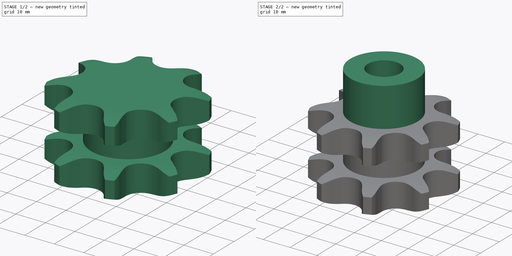
[diagram: build sequence overview — one tinted view per stage of 2, left to right]
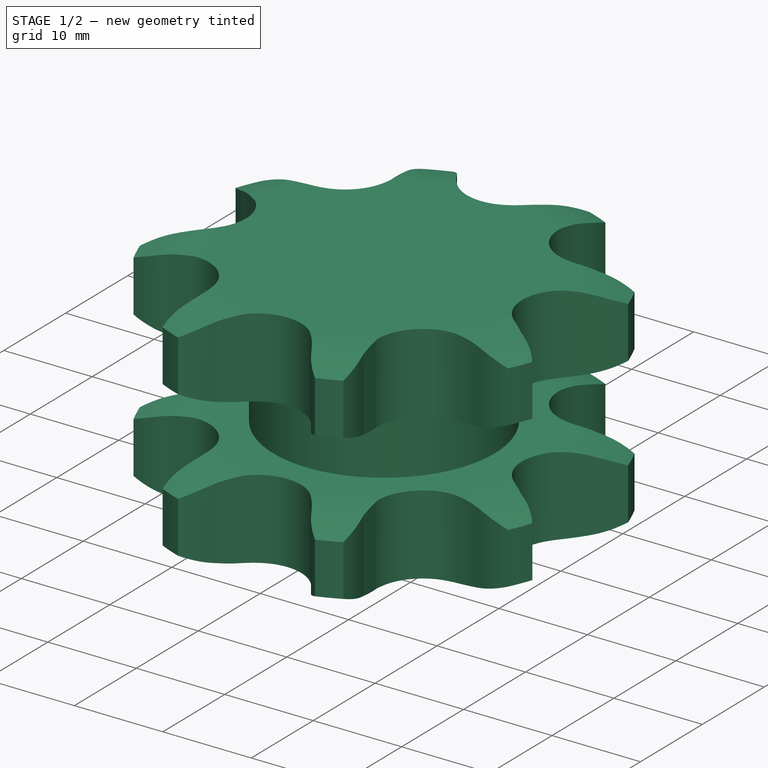
[diagram: stage 1 of 2 — iso view after this stage's code; geometry added in this stage tinted green]
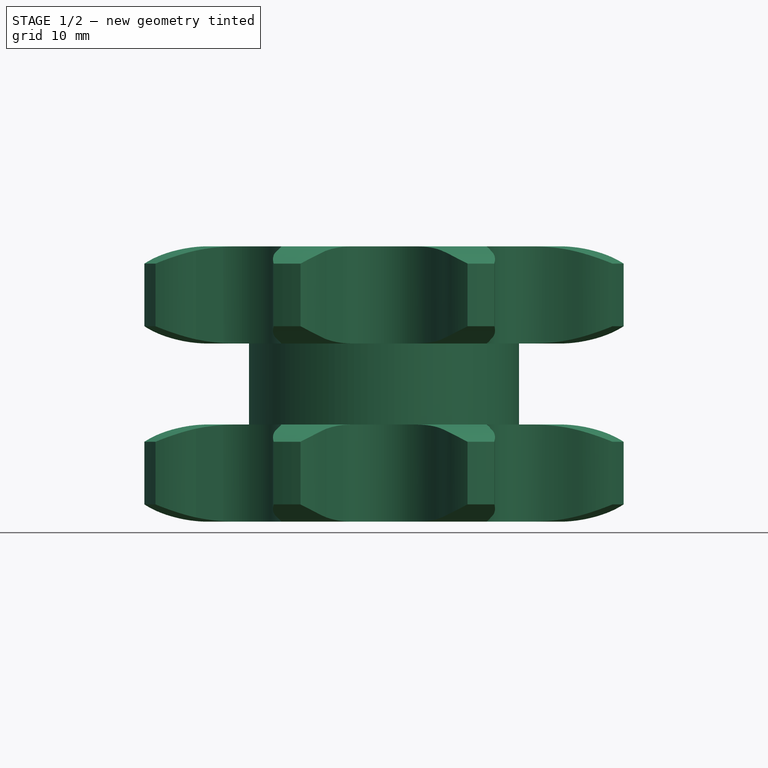
[diagram: stage 1 of 2 — front view after this stage's code; geometry added in this stage tinted green]
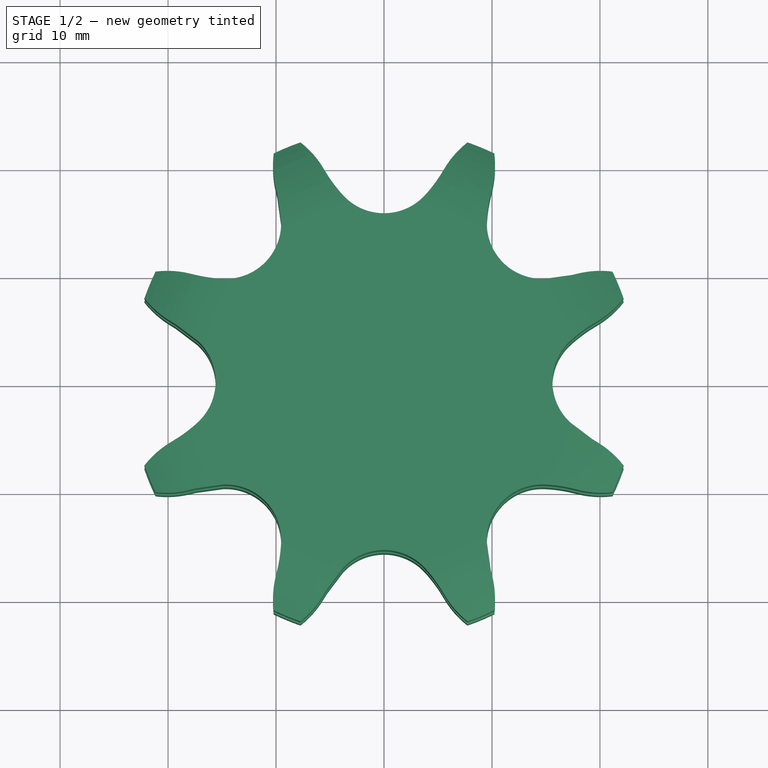
[diagram: stage 1 of 2 — top view after this stage's code; geometry added in this stage tinted green]
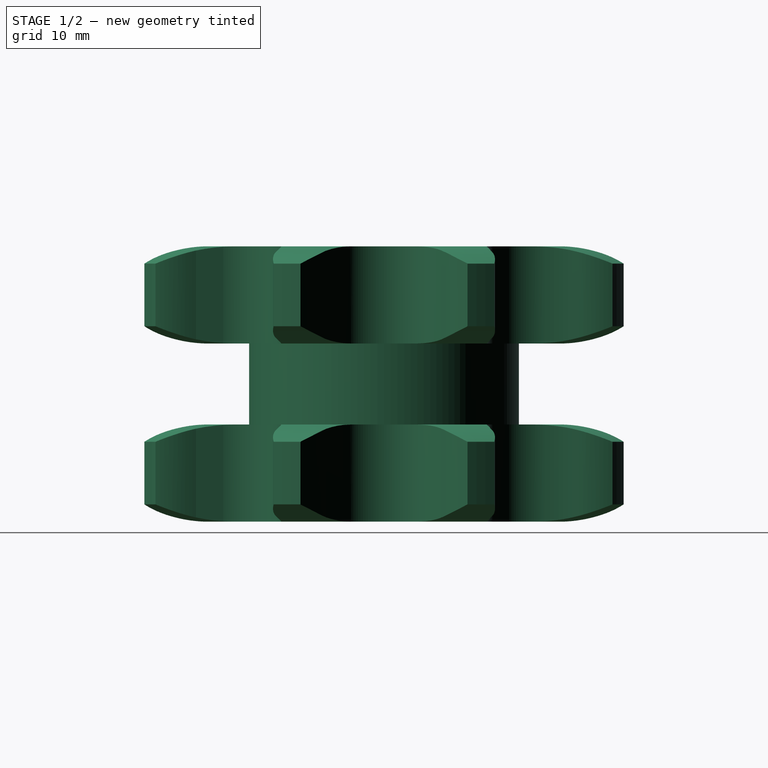
[diagram: stage 1 of 2 — right view after this stage's code; geometry added in this stage tinted green]
FCSTD DOCUMENT  (FreeCAD 0.21R33694 (Git))
Label: Sprocket ANSI duplex ⅝x⅜
License: Creative Commons Attribution 4.0
LicenseURL: https://creativecommons.org/licenses/by/4.0/
objects: Sketcher::SketchObject×3, PartDesign::Pad×2, Spreadsheet::Sheet×1, Part::Part2DObjectPython×1, PartDesign::Groove×1, PartDesign::Pocket×1, PartDesign::Body×1
note: 13 computed .brp shape members not serialized (recipe doc carries the construction recipe); baked Part::Feature solids carry a one-line shape summary decoded from their .brp

FEATURE [Spreadsheet::Sheet] Spreadsheet  label="Data"
  TeethNumber = 0
  cells = A1='Teeth Number; B1='P (Pitch); C1='Wc (Chain width); D1='Dr (Roller diameter); E1='Tr (Tooth radius); F1='Rw (Radius width); G1='Wt1 (Tooth width 1); H1='Wt2 (Tooth width 2); I1='z (Number of teeth); J1='De (External Diameter); K1='Dp (pitch diameter); L1='d (Hub diameter); M1='D (Hole diameter); N1='H (Total height); A2==hiddenref(.TeethNumber.String); B2(P)==.B3; C2(Wc)==.C3; D2(Dr)==.D3; E2(Tr)==.E3; F2(Rw)==.F3; G2(Wt1)==.G3; H2(Wt2)==.H3; I2(z)==.I3; J2(De)==.J3; K2(Dp)==.K3; L2(d)==.L3; M2(D)==.M3; N2(H)==.N3; A3='Z 8; B3==15.875 mm; C3==9.65 mm; D3==10.16 mm; E3==16 mm; F3==1.6 mm; G3==9 mm; H3==25.5 mm; I3=8; J3==47 mm; K3==41.48 mm; L3==25 mm; M3==12 mm; N3==40 mm; A4='Z 9; B4==15.875 mm; C4==9.65 mm; D4==10.16 mm; E4==16 mm; F4==1.6 mm; G4==9 mm; H4==25.5 mm; I4=9; J4==52.6 mm; K4==46.42 mm; L4==30 mm; M4==12 mm; N4==40 mm; A5='Z 10; B5==15.875 mm; C5==9.65 mm; D5==10.16 mm; E5==16 mm; F5==1.6 mm; G5==9 mm; H5==25.5 mm; I5=10; J5==57.5 mm; K5==51.37 mm; L5==35 mm; M5==12 mm; N5==40 mm; A6='Z 11; B6==15.875 mm; C6==9.65 mm; D6==10.16 mm; E6==16 mm; F6==1.6 mm; G6==9 mm; H6==25.5 mm; I6=11; J6==63 mm; K6==56.34 mm; L6==39 mm; M6==14 mm; N6==40 mm; A7='Z 12; B7==15.875 mm; C7==9.65 mm; D7==10.16 mm; E7==16 mm; F7==1.6 mm; G7==9 mm; H7==25.5 mm; I7=12; J7==68 mm; K7==61.34 mm; L7==44 mm; M7==14 mm; N7==40 mm; A8='Z 13; B8==15.875 mm; C8==9.65 mm; D8==10.16 mm; E8==16 mm; F8==1.6 mm; G8==9 mm; H8==25.5 mm; I8=13; J8==73 mm; K8==66.32 mm; L8==49 mm; M8==14 mm; N8==40 mm; A9='Z 14; B9==15.875 mm; C9==9.65 mm; D9==10.16 mm; E9==16 mm; F9==1.6 mm; G9==9 mm; H9==25.5 mm; I9=14; J9==78 mm; K9==71.34 mm; L9==54 mm; M9==14 mm; N9==40 mm; A10='Z 15; B10==15.875 mm; C10==9.65 mm; D10==10.16 mm; E10==16 mm; F10==1.6 mm; G10==9 mm; H10==25.5 mm; I10=15; J10==83 mm; K10==76.36 mm; L10==59 mm; M10==14 mm; N10==40 mm; A11='Z 16; B11==15.875 mm; C11==9.65 mm; D11==10.16 mm; E11==16 mm; F11==1.6 mm; G11==9 mm; H11==25.5 mm; I11=16; J11==88 mm; K11==81.37 mm; L11==64 mm; M11==16 mm; N11==45 mm; A12='Z 17; B12==15.875 mm; C12==9.65 mm; D12==10.16 mm; E12==16 mm; F12==1.6 mm; G12==9 mm; H12==25.5 mm; I12=17; J12==93 mm; K12==86.39 mm; L12==69 mm; M12==16 mm; N12==45 mm; A13='Z 18; B13==15.875 mm; C13==9.65 mm; D13==10.16 mm; E13==16 mm; F13==1.6 mm; G13==9 mm; H13==25.5 mm; I13=18; J13==98.3 mm; K13==91.42 mm; L13==74 mm; M13==16 mm; N13==45 mm; A14='Z 19; B14==15.875 mm; C14==9.65 mm; D14==10.16 mm; E14==16 mm; F14==1.6 mm; G14==9 mm; H14==25.5 mm; I14=19; J14==103.3 mm; K14==96.45 mm; L14==79 mm; M14==16 mm; N14==45 mm; A15='Z 20; B15==15.875 mm; C15==9.65 mm; D15==10.16 mm; +360 more cells
  expr: .TeethNumber.Enum = cells[<<A3:|>>]
  expr: .cells.Bind.B2.ZZ2 = tuple(.cells; <<B>> + str(hiddenref(TeethNumber) + 3); <<ZZ>> + str(hiddenref(TeethNumber) + 3))
FEATURE [Part::Part2DObjectPython] Sprocket  label="Teeth sketch"  # Draft 2D object (typed FeaturePython)
  ANSISize = 50
  NumberOfTeeth = 8
  Pitch = 15.875
  RollerDiameter = 10.16
  expr: NumberOfTeeth = <<Data>>.z
  expr: Pitch = <<Data>>.P
  expr: RollerDiameter = <<Data>>.Dr
FEATURE [PartDesign::Pad] Pad  label="Teeth"
  Direction = (0,0,1)
  Length = 25.5
  Length2 = 100
  Profile = -> Sprocket
  Type = 0
  expr: Length = <<Data>>.Wt2
FEATURE [Sketcher::SketchObject] Sketch  label="Radius"
  FullyConstrained = true
  MapMode = 5
  Placement = pos=(0,0,0) rot=(1,0,0;1.5708rad)
  Support = -> [XZ_Plane]
  expr: .Constraints.Re = <<Data>>.De / 2
  expr: .Constraints.Rw = <<Data>>.Rw
  expr: .Constraints.Tr = <<Data>>.Tr
  expr: .Constraints.Wt1 = <<Data>>.Wt1
  expr: .Constraints.Wt2 = <<Data>>.Wt2
  expr: .Constraints.r = <<Data>>.d / 2
  expr: Constraints[38] = 10 mm
  sketch-geometry (16):
    g0: ArcOfCircle CenterX=16.5258 CenterY=16 CenterZ=0 NormalX=0 NormalY=0 NormalZ=1 AngleXU=0 Radius=16 StartAngle=4.71239 EndAngle=5.16342
    g1: LineSegment StartX=16.5258 StartY=0 StartZ=0 EndX=26.5258 EndY=0 EndZ=0
    g2: LineSegment StartX=26.5258 StartY=25.5 StartZ=0 EndX=26.5258 EndY=0 EndZ=0
    g3: ArcOfCircle CenterX=16.5258 CenterY=-7 CenterZ=0 NormalX=0 NormalY=0 NormalZ=1 AngleXU=0 Radius=16 StartAngle=1.11977 EndAngle=1.5708
    g4: LineSegment StartX=23.5 StartY=1.6 StartZ=0 EndX=23.5 EndY=7.4 EndZ=0
    g5: LineSegment StartX=16.5258 StartY=9 StartZ=0 EndX=16.5258 EndY=0 EndZ=0
    g6: LineSegment StartX=16.5258 StartY=9 StartZ=0 EndX=16.5258 EndY=16.5 EndZ=0
    g7: ArcOfCircle CenterX=16.5258 CenterY=32.5 CenterZ=0 NormalX=0 NormalY=0 NormalZ=1 AngleXU=0 Radius=16 StartAngle=4.71239 EndAngle=5.16342
    g8: LineSegment StartX=23.5 StartY=18.1 StartZ=0 EndX=23.5 EndY=7.4 EndZ=0
    g9: LineSegment StartX=23.5 StartY=18.1 StartZ=0 EndX=23.5 EndY=23.9 EndZ=0
    g10: LineSegment StartX=16.5258 StartY=16.5 StartZ=0 EndX=16.5258 EndY=25.5 EndZ=0
    g11: LineSegment StartX=16.5258 StartY=25.5 StartZ=0 EndX=26.5258 EndY=25.5 EndZ=0
    g12: ArcOfCircle CenterX=16.5258 CenterY=9.5 CenterZ=0 NormalX=0 NormalY=0 NormalZ=1 AngleXU=0 Radius=16 StartAngle=1.11977 EndAngle=1.5708
    g13: LineSegment StartX=16.5258 StartY=16.5 StartZ=0 EndX=12.5 EndY=16.5 EndZ=0
    g14: LineSegment StartX=12.5 StartY=16.5 StartZ=0 EndX=12.5 EndY=9 EndZ=0
    g15: LineSegment StartX=12.5 StartY=9 StartZ=0 EndX=16.5258 EndY=9 EndZ=0
  constraints (47):
    c: PointOnObject(g0,g-1)
    c: Radius(g0) = 16  'Tr'
    c: DistanceY(g0,g0) = 1.6  'Rw'
    c: Coincident(g1,g0)
    c: PointOnObject(g1,g-1)
    c: Coincident(g2,g1)
    c: Vertical(g2)
    c: DistanceX(g0) = 23.5  'Re'
    c: Coincident(g4,g0)
    c: Vertical(g4)
    c: Coincident(g4,g3)
    c: Equal(g3,g0)
    c: Coincident(g5,g3)
    c: Coincident(g5,g0)
    c: Vertical(g5)
    c: Coincident(g6,g3)
    c: Vertical(g6)
    c: Coincident(g7,g6)
    c: Equal(g0,g7)
    c: Perpendicular(g7,g6)
    c: Coincident(g8,g7)
    c: Coincident(g8,g3)
    c: Vertical(g8)
    c: Coincident(g9,g7)
    c: Coincident(g10,g6)
    c: Vertical(g10)
    c: Vertical(g9)
    c: Coincident(g11,g10)
    c: Coincident(g11,g2)
    c: Horizontal(g11)
    c: DistanceY(g5,g5) = 9  'Wt1'
    c: Equal(g5,g10)
    c: DistanceY(g2,g2) = 25.5  'Wt2'
    c: Coincident(g12,g9)
    c: Tangent(g12,g11) = 1.5708
    c: Equal(g0,g12)
    c: Perpendicular(g3,g5)
    c: Equal(g9,g4)
    c: DistanceX(g11,g11) = 10
    c: Horizontal(g13)
    c: Coincident(g13,g14)
    c: Vertical(g14)
    c: Coincident(g14,g15)
    c: Horizontal(g15)
    c: Coincident(g13,g7)
    c: Coincident(g15,g3)
    c: DistanceX(g13) = 12.5  'r'
FEATURE [PartDesign::Groove] Groove  label="Teeth Radius"
  Angle = 360
  Axis = (-3e-16,3e-16,1)
  Base = (0,0,0)
  BaseFeature = -> Pad
  Profile = -> Sketch
  ReferenceAxis = -> Z_Axis
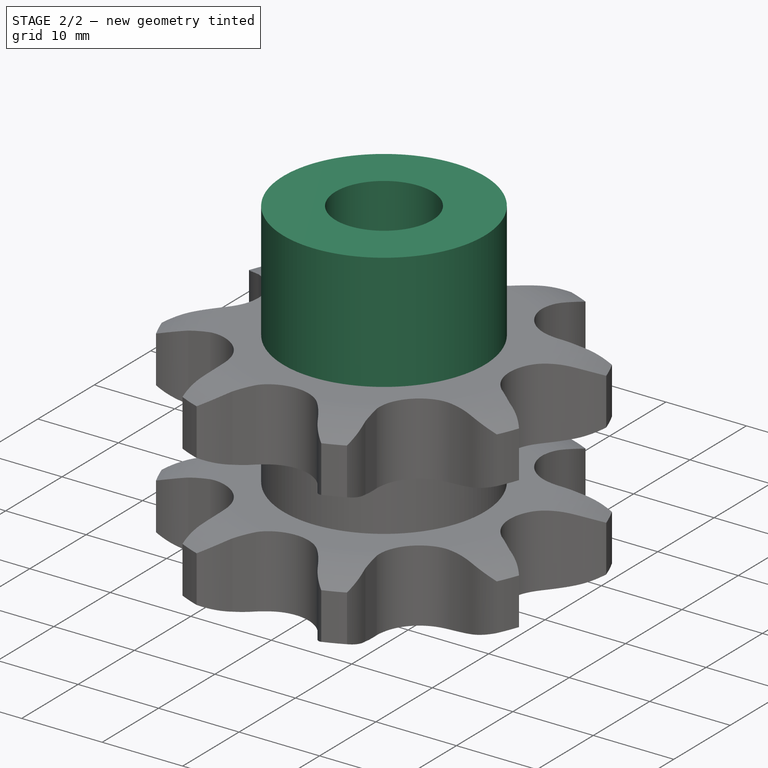
[diagram: stage 2 of 2 — iso view after this stage's code; geometry added in this stage tinted green]
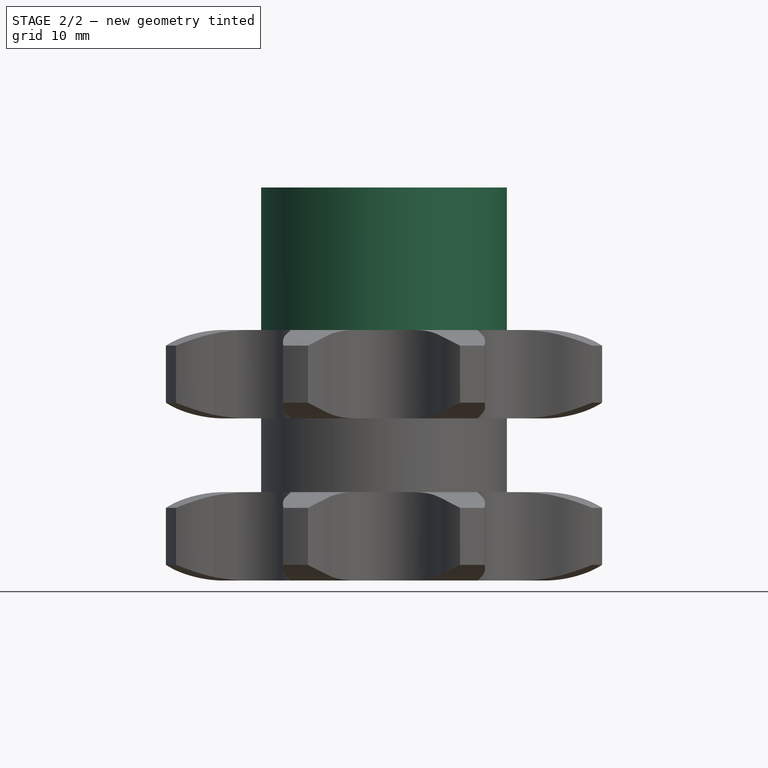
[diagram: stage 2 of 2 — front view after this stage's code; geometry added in this stage tinted green]
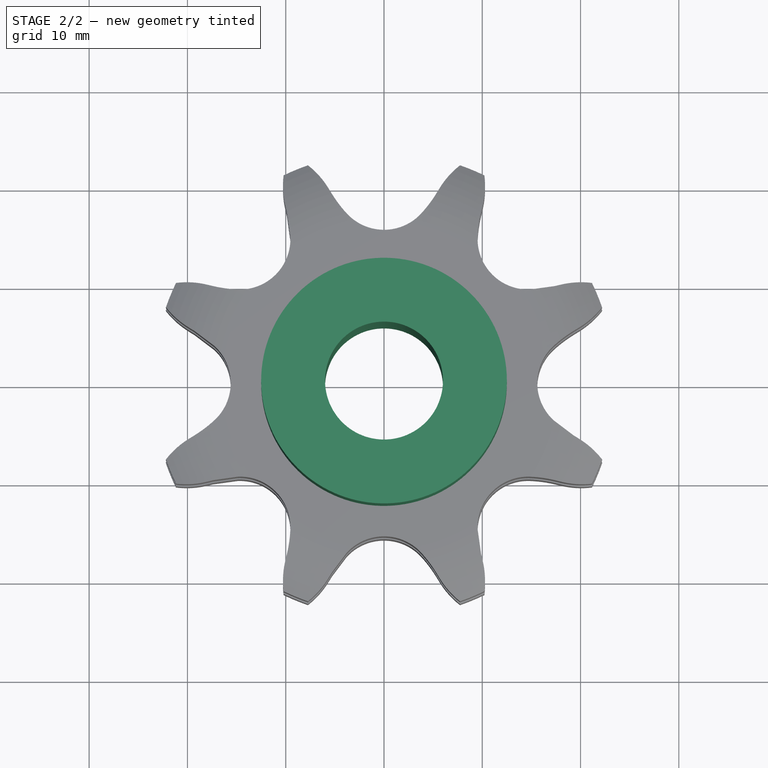
[diagram: stage 2 of 2 — top view after this stage's code; geometry added in this stage tinted green]
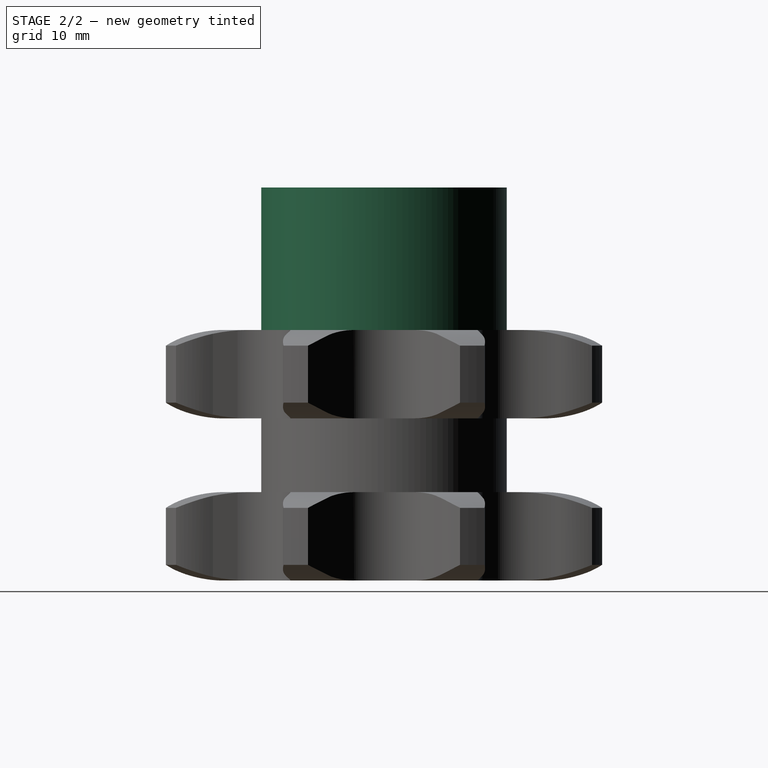
[diagram: stage 2 of 2 — right view after this stage's code; geometry added in this stage tinted green]
FEATURE [Sketcher::SketchObject] Sketch001  label="Hub sketch"
  FullyConstrained = true
  MapMode = 5
  Support = -> [XY_Plane]
  expr: .Constraints.r = <<Data>>.d
  sketch-geometry (1):
    g0: Circle CenterX=0 CenterY=0 CenterZ=0 NormalX=0 NormalY=0 NormalZ=1 AngleXU=0 Radius=12.5
  constraints (2):
    c: Coincident(g0,g-1)
    c: Diameter(g0) = 25  'r'
FEATURE [PartDesign::Pad] Pad001  label="Hub"
  BaseFeature = -> Groove
  Direction = (0,0,1)
  Length = 40
  Length2 = 100
  Profile = -> Sketch001
  Type = 0
FEATURE [Sketcher::SketchObject] Sketch002  label="Hole sketch"
  FullyConstrained = true
  MapMode = 5
  Support = -> [XY_Plane]
  expr: .Constraints.R = <<Data>>.D
  sketch-geometry (1):
    g0: Circle CenterX=0 CenterY=0 CenterZ=0 NormalX=0 NormalY=0 NormalZ=1 AngleXU=0 Radius=6
  constraints (2):
    c: Coincident(g0,g-1)
    c: Diameter(g0) = 12  'R'
FEATURE [PartDesign::Pocket] Pocket  label="Hole"
  BaseFeature = -> Pad001
  Direction = (0,0,-1)
  Length = 5
  Length2 = 100
  Midplane = true
  Profile = -> Sketch002
  Type = 1
FEATURE [PartDesign::Body] Body  label="Sprocket ANSI duplex ⅝x⅜ z8"
  Group = -> [Sprocket,Pad,Sketch,Groove,Sketch001,Pad001,Sketch002,Pocket]
  Origin = -> Origin
  Tip = -> Pocket
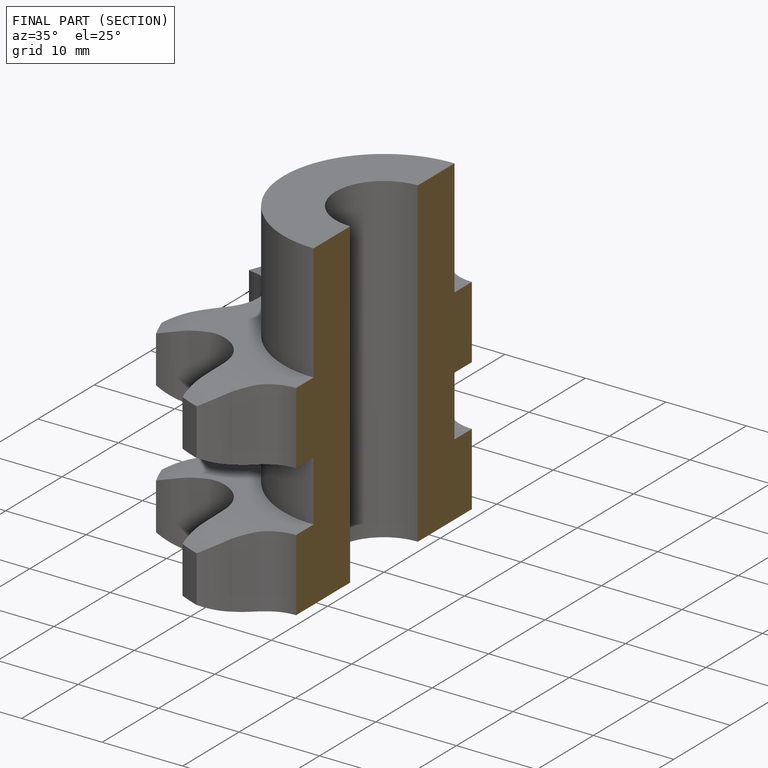
[diagram: finished part — half-section view (interior)]
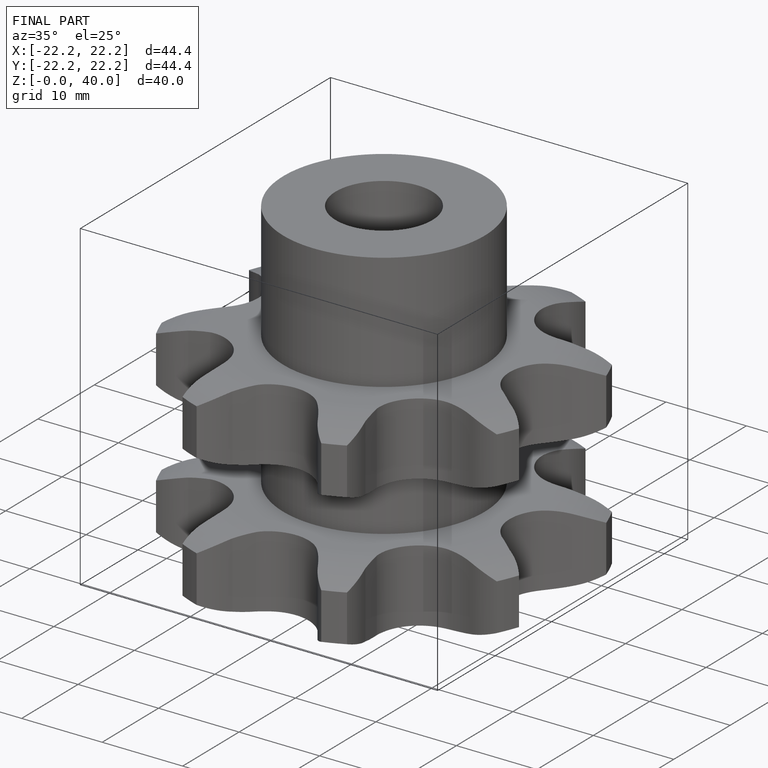
[diagram: finished part — iso view with bounding-box wireframe]
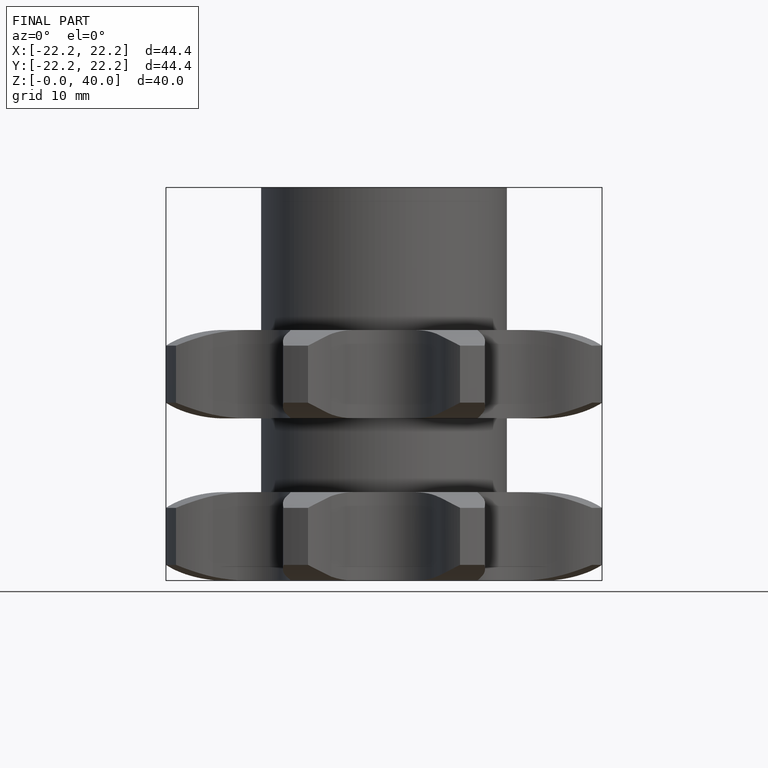
[diagram: finished part — front view with bounding-box wireframe]
